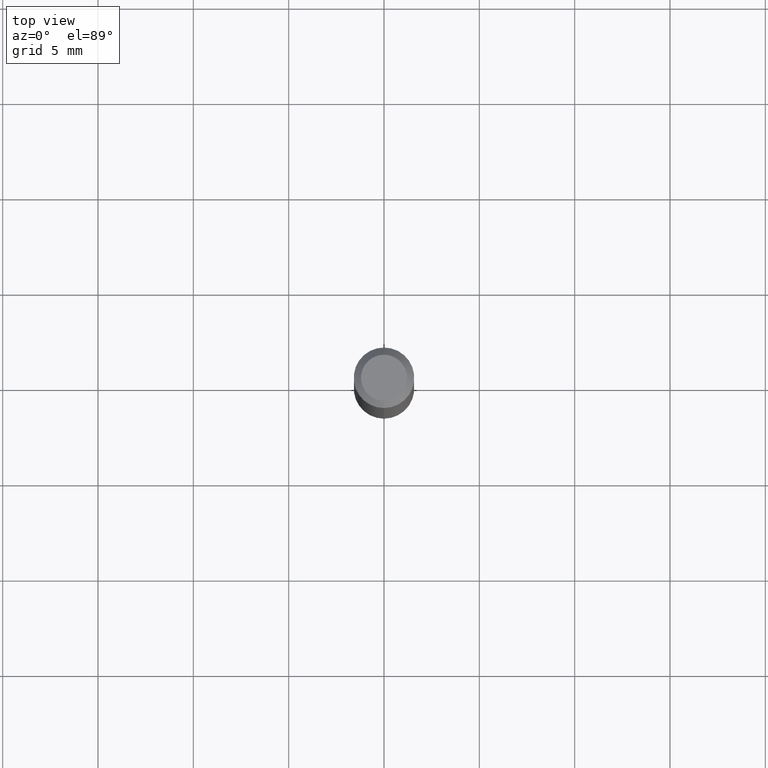
[diagram: clean part render]
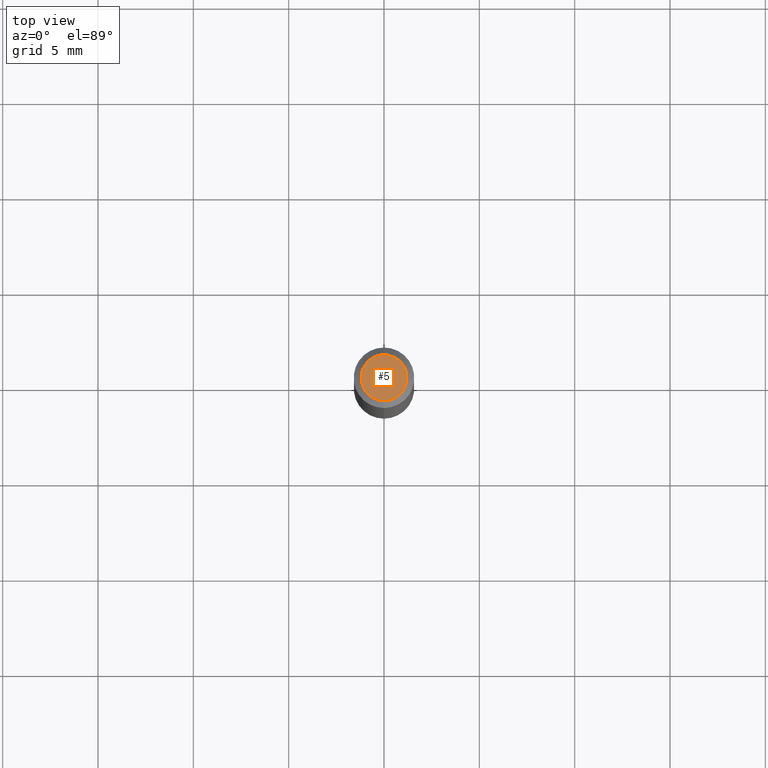
[diagram: same view with one face highlighted and labeled with its STEP entity id]
A machine part, top view. The second image highlights one B-rep face of the part: STEP entity #5.
In plain terms, the highlighted planar face has unit normal (0, -0, -1).
Its self-contained STEP definition (entity closure, byte-faithful):
#5 = ADVANCED_FACE ( 'NONE', ( #263 ), #65, .F. ) ;
#63 = ORIENTED_EDGE ( 'NONE', *, *, #393, .T. ) ;
#65 = PLANE ( 'NONE',  #323 ) ;
#77 = CARTESIAN_POINT ( 'NONE',  ( -3.773273898774340269E-16, -0.04749999999999999362, 1.569867050225781996E-16 ) ) ;
#82 = DIRECTION ( 'NONE',  ( 6.982962677686265922E-15, 1.000000000000000000, -3.491498823257460150E-15 ) ) ;
#142 = VERTEX_POINT ( 'NONE', #77 ) ;
#178 = ORIENTED_EDGE ( 'NONE', *, *, #431, .T. ) ;
#197 = VERTEX_POINT ( 'NONE', #363 ) ;
#205 = DIRECTION ( 'NONE',  ( -2.445456596883876377E-29, 3.491498823257460544E-15, 1.000000000000000000 ) ) ;
#211 = CARTESIAN_POINT ( 'NONE',  ( 2.166549602096718093E-46, -3.093289570499301366E-32, -8.859489082151138529E-18 ) ) ;
#221 = CARTESIAN_POINT ( 'NONE',  ( 3.316907271900976096E-16, 0.04749999999999999362, -1.702759386458049536E-16 ) ) ;
#245 = AXIS2_PLACEMENT_3D ( 'NONE', #291, #205, #410 ) ;
#253 = CIRCLE ( 'NONE', #366, 0.04749999999999999362 ) ;
#263 = FACE_OUTER_BOUND ( 'NONE', #504, .T. ) ;
#291 = CARTESIAN_POINT ( 'NONE',  ( 2.166549602096718093E-46, -3.093289570499301366E-32, -8.859489082151138529E-18 ) ) ;
#308 = CIRCLE ( 'NONE', #245, 0.04749999999999999362 ) ;
#323 = AXIS2_PLACEMENT_3D ( 'NONE', #221, #346, #82 ) ;
#346 = DIRECTION ( 'NONE',  ( 2.445456596883876377E-29, -3.491498823257460150E-15, -1.000000000000000000 ) ) ;
#363 = CARTESIAN_POINT ( 'NONE',  ( 3.840629472727447874E-16, 0.04749999999999999362, -1.747056831868805136E-16 ) ) ;
#366 = AXIS2_PLACEMENT_3D ( 'NONE', #211, #488, #369 ) ;
#369 = DIRECTION ( 'NONE',  ( -6.982962677686266711E-15, -1.000000000000000000, 3.491498823257460939E-15 ) ) ;
#393 = EDGE_CURVE ( 'NONE', #142, #197, #308, .T. ) ;
#410 = DIRECTION ( 'NONE',  ( -6.982962677686266711E-15, -1.000000000000000000, 3.491498823257460939E-15 ) ) ;
#431 = EDGE_CURVE ( 'NONE', #197, #142, #253, .T. ) ;
#488 = DIRECTION ( 'NONE',  ( -2.445456596883876377E-29, 3.491498823257460544E-15, 1.000000000000000000 ) ) ;
#504 = EDGE_LOOP ( 'NONE', ( #178, #63 ) ) ;